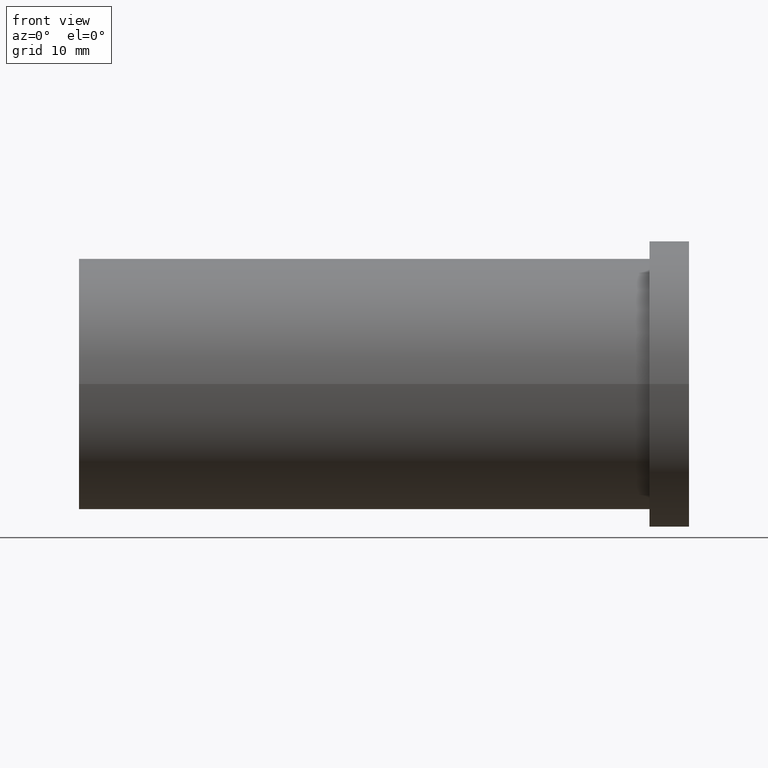
[diagram: clean part render]
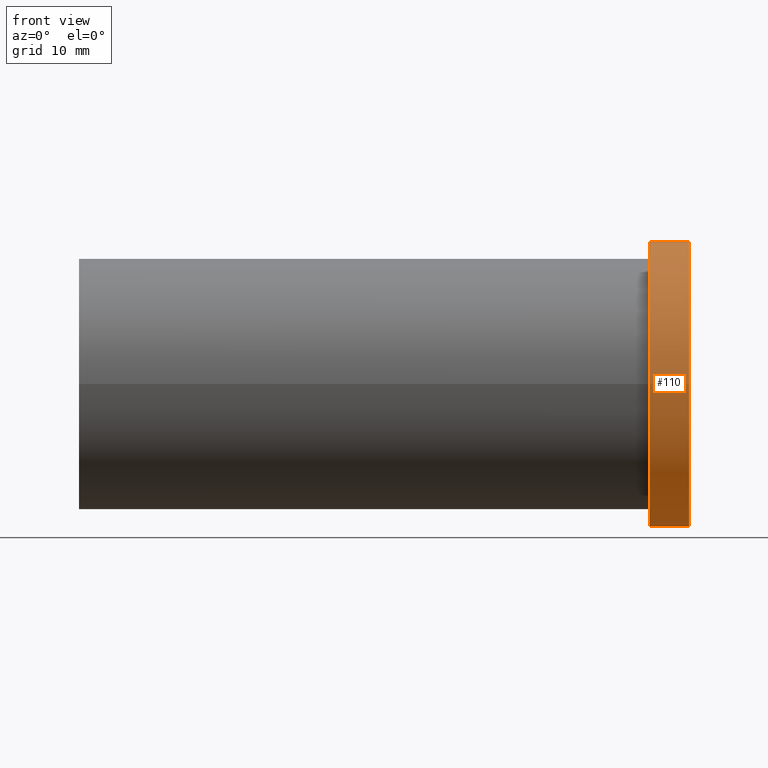
[diagram: same view with one face highlighted and labeled with its STEP entity id]
A machine part, front view. The second image highlights one B-rep face of the part: STEP entity #110.
In plain terms, the highlighted cylindrical surface (bore or boss wall) has radius 18 mm, axis along (1, 0, 0).
Its self-contained STEP definition (entity closure, byte-faithful):
#26=FACE_OUTER_BOUND('',#35,.T.);
#35=EDGE_LOOP('',(#89,#90,#91,#92));
#45=LINE('',#210,#49);
#49=VECTOR('',#176,18.);
#55=CIRCLE('',#146,18.);
#56=CIRCLE('',#147,18.);
#63=VERTEX_POINT('',#207);
#64=VERTEX_POINT('',#209);
#73=EDGE_CURVE('',#63,#63,#55,.T.);
#74=EDGE_CURVE('',#63,#64,#45,.T.);
#75=EDGE_CURVE('',#64,#64,#56,.T.);
#89=ORIENTED_EDGE('',*,*,#73,.F.);
#90=ORIENTED_EDGE('',*,*,#74,.T.);
#91=ORIENTED_EDGE('',*,*,#75,.T.);
#92=ORIENTED_EDGE('',*,*,#74,.F.);
#105=CYLINDRICAL_SURFACE('',#145,18.);
#110=ADVANCED_FACE('',(#26),#105,.T.);
#145=AXIS2_PLACEMENT_3D('',#206,#172,#173);
#146=AXIS2_PLACEMENT_3D('',#208,#174,#175);
#147=AXIS2_PLACEMENT_3D('',#211,#177,#178);
#172=DIRECTION('center_axis',(1.,0.,0.));
#173=DIRECTION('ref_axis',(0.,1.,0.));
#174=DIRECTION('center_axis',(1.,0.,0.));
#175=DIRECTION('ref_axis',(0.,0.,-1.));
#176=DIRECTION('',(-1.,0.,0.));
#177=DIRECTION('center_axis',(1.,0.,0.));
#178=DIRECTION('ref_axis',(0.,0.,-1.));
#206=CARTESIAN_POINT('Origin',(-2.49999999999999,0.,0.));
#207=CARTESIAN_POINT('',(5.55111512312578E-15,-18.,-2.20436423846524E-15));
#208=CARTESIAN_POINT('Origin',(5.55111512312578E-15,0.,0.));
#209=CARTESIAN_POINT('',(-4.99999999999999,-18.,-2.20436423846524E-15));
#210=CARTESIAN_POINT('',(-2.49999999999999,-18.,-2.20436423846524E-15));
#211=CARTESIAN_POINT('Origin',(-4.99999999999999,0.,0.));